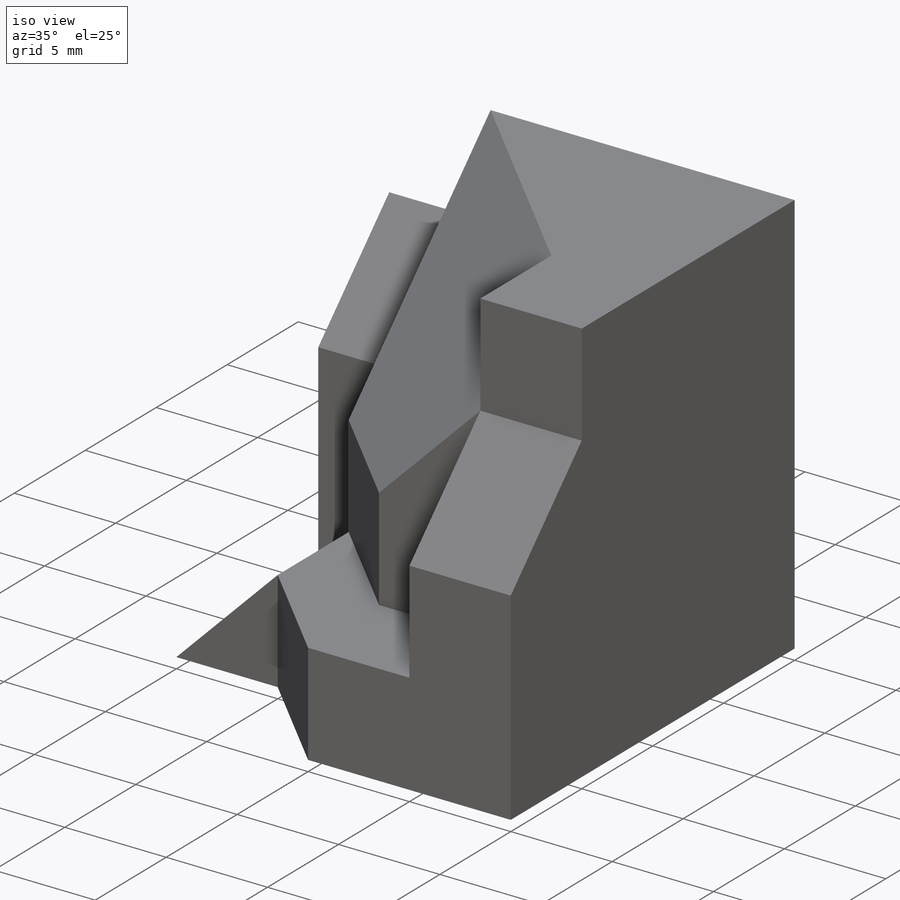
[diagram: iso view]
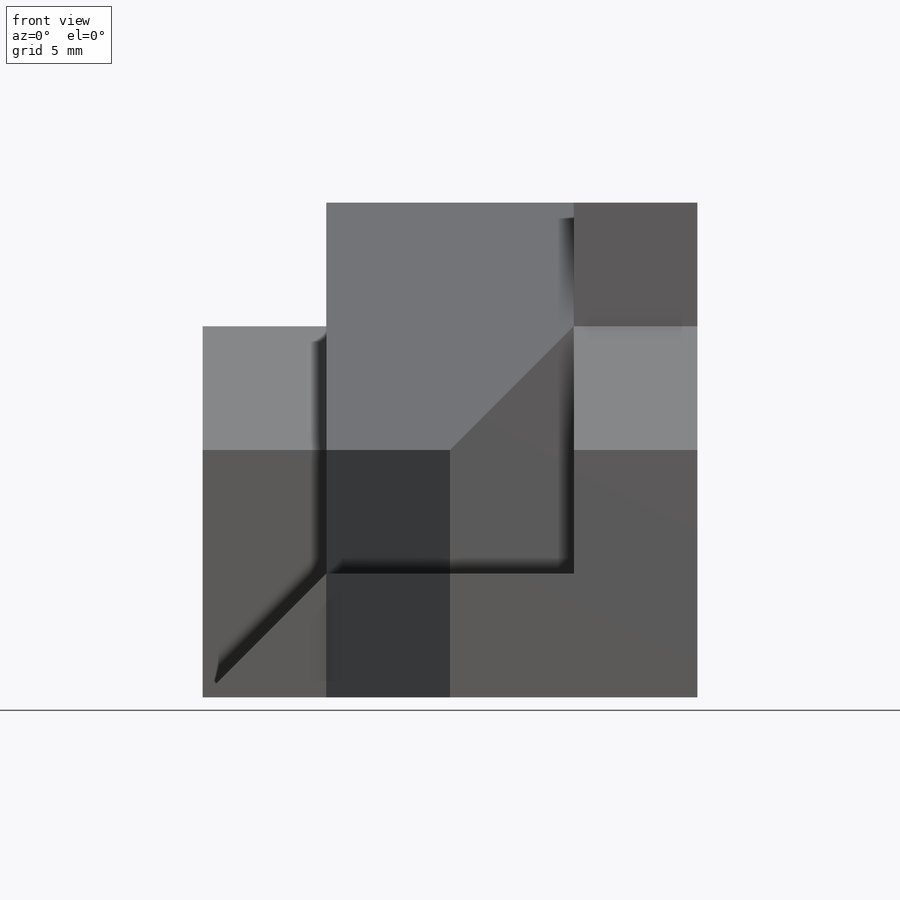
[diagram: front view]
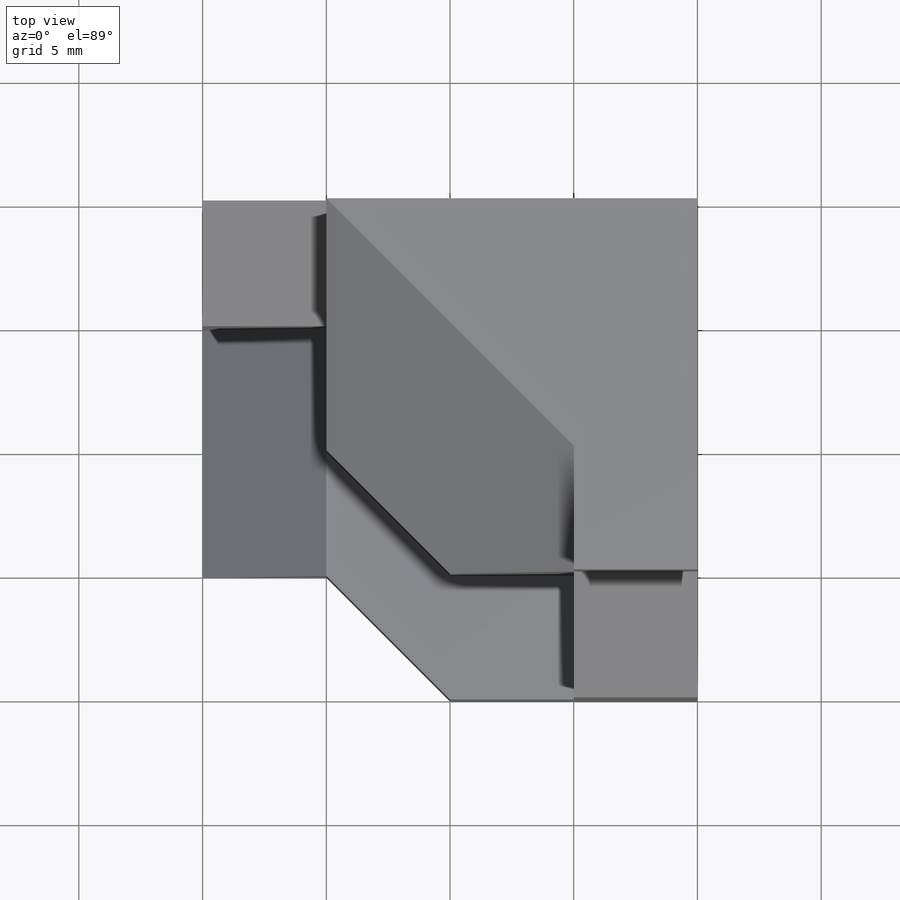
[diagram: top view]
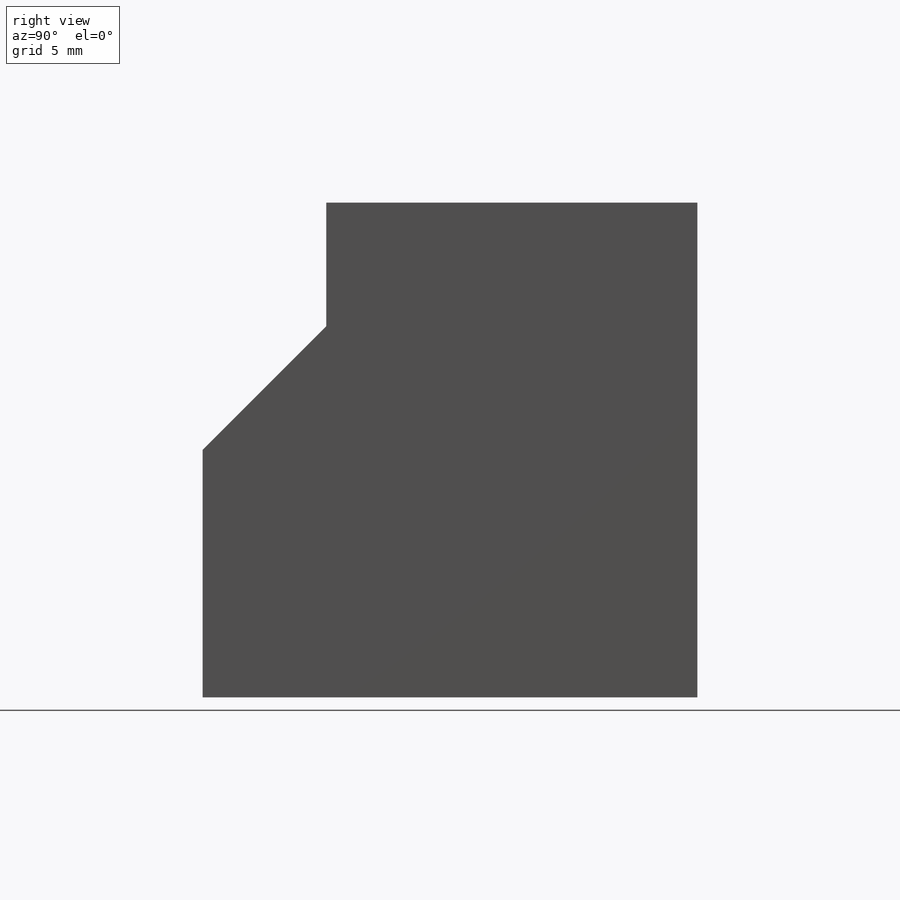
[diagram: right view]
SOLIDWORKS PART (.sldprt)
format: sldprt  version: not decoded by parser v0  size: 238,592 bytes
history: native  units: mm
features: sketch x9, extrude x6, cut_extrude x3, material x1, plane x1 (+13 scaffold rows collapsed)
feature tree (33):
  scaffold x13  (default folders/planes/origin — collapsed)
  material  "Material <not specified>"
  sketch  "Sketch1"  dims[D1=15.0mm D2=15.0mm D3=5.0mm D4=5.0mm]
  extrude  "Boss-Extrude1"  Depth=20mm
  sketch  "Sketch2"  dims[D1=15.0mm]
  extrude  "Boss-Extrude3"  Depth=5mm
  sketch  "Sketch4"  dims[D1=5.0mm]
  cut_extrude  "Cut-Extrude2"  Depth=5mm
  plane  "Plane1"
  sketch  "Sketch5"  dims[D1=5.0mm D2=5.0mm]
  extrude  "Boss-Extrude4"  Depth=20mm
  sketch  "3DSketch1"  dims[c1.D1=5.0mm c1.D2=5.0mm c1.D3=5.0mm c1.D4=5.0mm c2.D3=~8.532921mm c2.D6=10.0mm c2.D4=~3.15433mm c3.D6=~3.15433mm c3.D5=10.0mm c4.D6=~3.399329mm c4.D7=5.0mm c5.D6=~3.535534mm c5.D4=10.0mm c6.D6=~3.15433mm c6.D7=4.0mm c7.D7=~3.071068mm c7.D8=~3.071068mm c7.D6=~3.071068mm c8.D7=5.0mm c8.D6=~2.071068mm c8.D3=10.0mm]
  cut_extrude  "Cut-Extrude3"  Depth=37mm
  sketch  "Sketch6"  dims[D1=5.0mm D2=10.0mm D3=15.0mm]
  extrude  "Boss-Extrude5"  Depth=5mm
  sketch  "Sketch7"  dims[D1=5.0mm]
  extrude  "Boss-Extrude6"  Depth=10mm
  sketch  "Sketch8"
  cut_extrude  "Cut-Extrude4"  Depth=10mm
  sketch  "Sketch9"
  extrude  "Boss-Extrude7"  Depth=5mm
decode coverage: 16 of 18 modeling features carry decoded parameters
note: ~ marks probable driven/reference dimensions
note: suppression state not decoded; provenance and decode notes live in map.json
